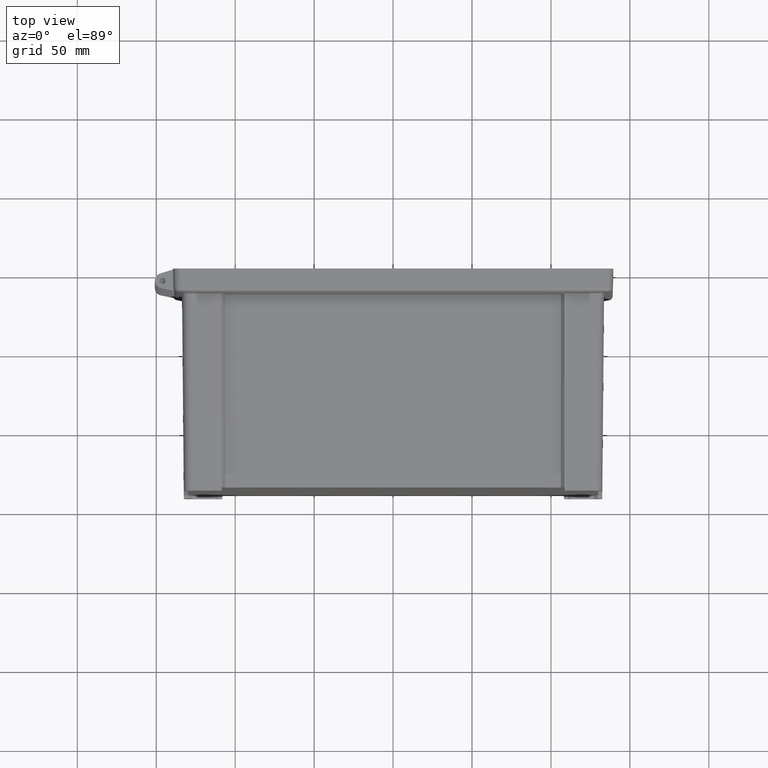
[diagram: clean part render]
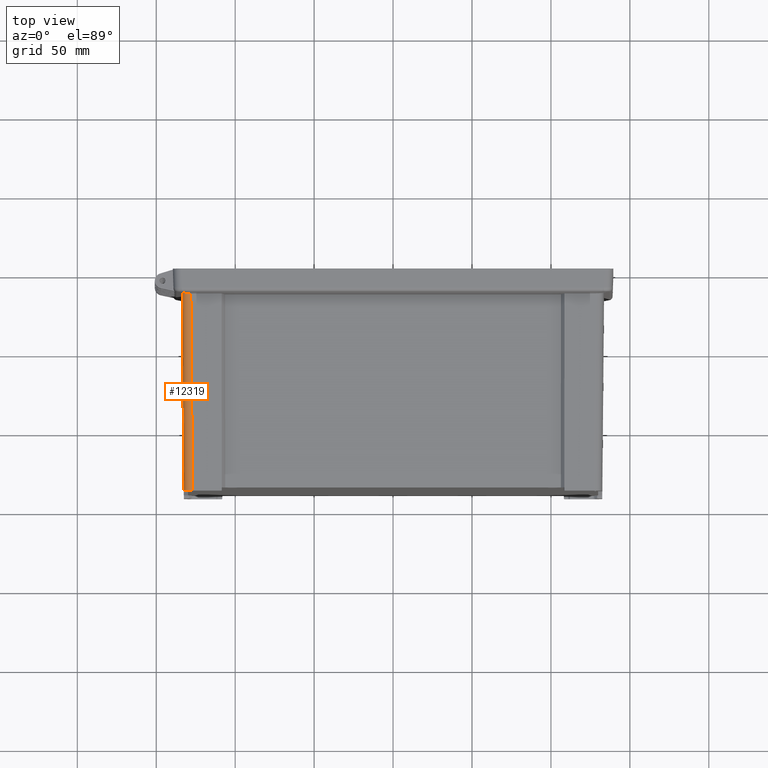
[diagram: same view with one face highlighted and labeled with its STEP entity id]
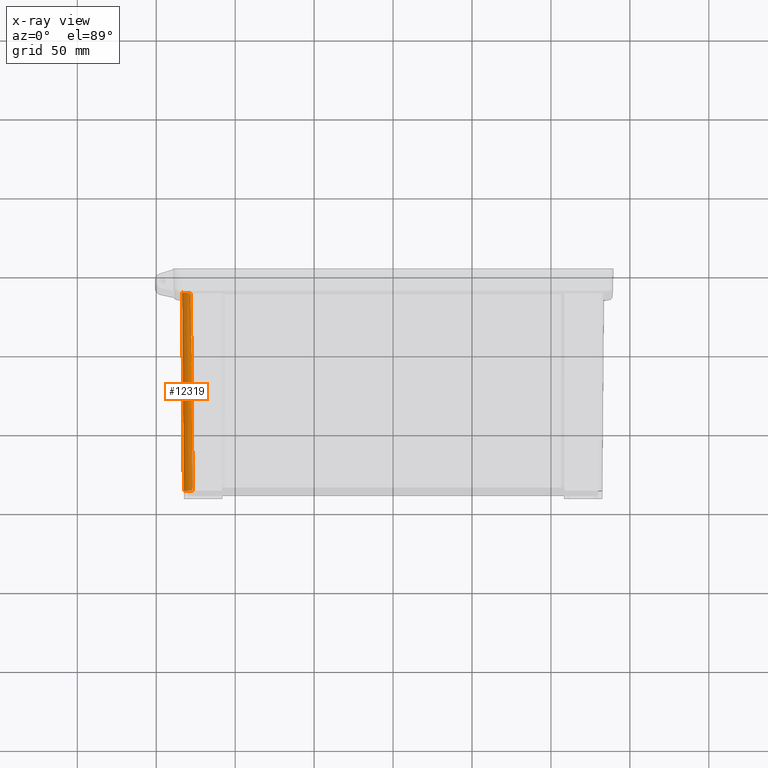
[diagram: x-ray of the same camera — body ghosted, the highlighted face saturated]
A machine part, top view. The second image highlights one B-rep face of the part: STEP entity #12319.
The next image is the same camera in x-ray: the body ghosted, the highlighted face saturated — about 0% of this face is hidden behind the body in this view.
In plain terms, the highlighted cylindrical surface (edge-blend (fillet) strip) has radius 5.5 mm, axis along (-0.0087, 0.9999, 0.0087).
Its self-contained STEP definition (entity closure, byte-faithful):
#711 =( BOUNDED_CURVE ( )  B_SPLINE_CURVE ( 3, ( #762, #761, #760, #759 ),
 .UNSPECIFIED., .F., .T. ) 
 B_SPLINE_CURVE_WITH_KNOTS ( ( 4, 4 ),
 ( 5.497825219993075100, 7.068545394366091200 ),
 .UNSPECIFIED. ) 
 CURVE ( )  GEOMETRIC_REPRESENTATION_ITEM ( )  RATIONAL_B_SPLINE_CURVE ( ( 1.000000000000000000, 0.8047558030806119000, 0.8047558030806119000, 1.000000000000000000 ) ) 
 REPRESENTATION_ITEM ( '' )  );
#713 = CARTESIAN_POINT ( 'NONE',  ( -132.5071604515845800, -140.5000000000000000, 151.5073698747315800 ) ) ;
#714 = CARTESIAN_POINT ( 'NONE',  ( -127.0073698747316200, -140.5000000000000000, 157.0071604515844400 ) ) ;
#759 = CARTESIAN_POINT ( 'NONE',  ( -132.5071604515845800, -140.5000000000000000, 151.5073698747315800 ) ) ;
#760 = CARTESIAN_POINT ( 'NONE',  ( -132.5071604515845800, -140.5000000000000000, 154.7291234140137400 ) ) ;
#761 = CARTESIAN_POINT ( 'NONE',  ( -130.2291234140138000, -140.5000000000000000, 157.0071604515844700 ) ) ;
#762 = CARTESIAN_POINT ( 'NONE',  ( -127.0073698747316200, -140.5000000000000000, 157.0071604515844400 ) ) ;
#3083 = CARTESIAN_POINT ( 'NONE',  ( -133.2479070755100600, -15.21724247044645800, 154.5382472688394800 ) ) ;
#3084 = CARTESIAN_POINT ( 'NONE',  ( -133.4821148381278700, -15.16746007370799300, 153.9176259772866900 ) ) ;
#3085 = CARTESIAN_POINT ( 'NONE',  ( -133.6011417467239300, -15.14216012327060300, 153.2649642378832800 ) ) ;
#3086 = CARTESIAN_POINT ( 'NONE',  ( -133.6011417467239300, -15.14216012327060100, 152.6013511698707800 ) ) ;
#3087 = CARTESIAN_POINT ( 'NONE',  ( -133.2479070755100600, -15.21724247044645800, 154.5382472688394800 ) ) ;
#3088 =( BOUNDED_CURVE ( )  B_SPLINE_CURVE ( 3, ( #3086, #3085, #3084, #3083 ),
 .UNSPECIFIED., .F., .T. ) 
 B_SPLINE_CURVE_WITH_KNOTS ( ( 4, 4 ),
 ( 6.243844256862529600, 6.603843504648568600 ),
 .UNSPECIFIED. ) 
 CURVE ( )  GEOMETRIC_REPRESENTATION_ITEM ( )  RATIONAL_B_SPLINE_CURVE ( ( 1.000000000000000000, 0.9892291734148825900, 0.9892291734148825900, 1.000000000000000000 ) ) 
 REPRESENTATION_ITEM ( '' )  );
#3090 = CARTESIAN_POINT ( 'NONE',  ( -133.6011417467239300, -15.14216012327060100, 152.6013511698707800 ) ) ;
#3365 = DIRECTION ( 'NONE',  ( 0.008726203243944245100, -0.9999238504775704900, -0.008726203243944238200 ) ) ;
#3366 = VECTOR ( 'NONE', #3365, 1000.000000000000100 ) ;
#3367 = CARTESIAN_POINT ( 'NONE',  ( -128.0909437334314900, -16.33473421617316400, 158.0907343102843500 ) ) ;
#3373 = LINE ( 'NONE', #3367, #3366 ) ;
#3374 = CARTESIAN_POINT ( 'NONE',  ( -128.0975329269510000, -15.57968742533357800, 158.0973235038038400 ) ) ;
#3394 = DIRECTION ( 'NONE',  ( -0.008726203243944246800, 0.9999238504775704900, 0.008726203243944238200 ) ) ;
#3395 = VECTOR ( 'NONE', #3394, 1000.000000000000100 ) ;
#3396 = CARTESIAN_POINT ( 'NONE',  ( -133.5868279885217500, -16.78235435393195000, 152.5870374116688000 ) ) ;
#3397 = LINE ( 'NONE', #3396, #3395 ) ;
#3576 = CYLINDRICAL_SURFACE ( 'NONE', #3635, 5.499999999999988500 ) ;
#3577 = FACE_OUTER_BOUND ( 'NONE', #12320, .T. ) ;
#3612 = CARTESIAN_POINT ( 'NONE',  ( -133.2479070755100600, -15.21724247044645800, 154.5382472688394800 ) ) ;
#3613 = CARTESIAN_POINT ( 'NONE',  ( -133.1492238040318600, -15.23821824732623400, 154.7997456014094600 ) ) ;
#3614 = CARTESIAN_POINT ( 'NONE',  ( -133.0314545325559500, -15.25941638782640600, 155.0517711536117200 ) ) ;
#3615 = CARTESIAN_POINT ( 'NONE',  ( -132.7581268811346400, -15.30102225274967500, 155.5371700272466500 ) ) ;
#3616 = CARTESIAN_POINT ( 'NONE',  ( -132.6024432093437600, -15.32138996488629900, 155.7700319386007100 ) ) ;
#3617 = CARTESIAN_POINT ( 'NONE',  ( -132.2617867430420800, -15.35956798487716800, 156.2049194952492400 ) ) ;
#3618 = CARTESIAN_POINT ( 'NONE',  ( -132.0759358451910300, -15.37752586928050000, 156.4086403797058200 ) ) ;
#3619 = CARTESIAN_POINT ( 'NONE',  ( -131.6729720297167900, -15.41103800971607300, 156.7884558297585300 ) ) ;
#3620 = CARTESIAN_POINT ( 'NONE',  ( -131.4540239782456900, -15.42668175834707100, 156.9655455875998200 ) ) ;
#3621 = CARTESIAN_POINT ( 'NONE',  ( -130.9976194354427200, -15.45499820470180000, 157.2805762455775800 ) ) ;
#3622 = CARTESIAN_POINT ( 'NONE',  ( -130.7592178523183900, -15.46778486444327200, 157.4198180578713400 ) ) ;
#3623 = CARTESIAN_POINT ( 'NONE',  ( -130.2622399457534900, -15.49161036990402700, 157.6620634252288900 ) ) ;
#3624 = CARTESIAN_POINT ( 'NONE',  ( -130.0015407683615900, -15.50272743885199000, 157.7656764623934300 ) ) ;
#3625 = CARTESIAN_POINT ( 'NONE',  ( -129.2035910054857200, -15.53489436256572300, 158.0141547914676300 ) ) ;
#3626 = CARTESIAN_POINT ( 'NONE',  ( -128.6575568659820900, -15.55444775862735100, 158.0975437670382700 ) ) ;
#3627 = CARTESIAN_POINT ( 'NONE',  ( -128.0975329269510000, -15.57968742533357800, 158.0973235038038400 ) ) ;
#3631 = B_SPLINE_CURVE_WITH_KNOTS ( 'NONE', 3,
 ( #3627, #3626, #3625, #3624, #3623, #3622, #3621, #3620, #3619, #3618, #3617, #3616, #3615, #3614, #3613, #3612 ),
 .UNSPECIFIED., .F., .F.,
 ( 4, 2, 2, 2, 2, 2, 2, 4 ),
 ( 0.0000000000000000000, 0.001657878926426451200, 0.002486818389639637000, 0.003315757852852823000, 0.004144697316066008600, 0.004973636779279194200, 0.005802576242492379700, 0.006631515705705566200 ),
 .UNSPECIFIED. ) ;
#3632 = DIRECTION ( 'NONE',  ( -0.9999619230641713100, -0.008726535498374132400, 0.0000000000000000000 ) ) ;
#3633 = DIRECTION ( 'NONE',  ( -0.008726203243944246800, 0.9999238504775704900, 0.008726203243944236400 ) ) ;
#3634 = CARTESIAN_POINT ( 'NONE',  ( -128.0870374116688300, -16.73435840869089100, 152.5870374116687500 ) ) ;
#3635 = AXIS2_PLACEMENT_3D ( 'NONE', #3634, #3633, #3632 ) ;
#10775 = VERTEX_POINT ( 'NONE', #714 ) ;
#10777 = EDGE_CURVE ( 'NONE', #10775, #10778, #711, .T. ) ;
#10778 = VERTEX_POINT ( 'NONE', #713 ) ;
#12022 = VERTEX_POINT ( 'NONE', #3090 ) ;
#12024 = EDGE_CURVE ( 'NONE', #12022, #12025, #3088, .T. ) ;
#12025 = VERTEX_POINT ( 'NONE', #3087 ) ;
#12186 = VERTEX_POINT ( 'NONE', #3374 ) ;
#12188 = EDGE_CURVE ( 'NONE', #12186, #10775, #3373, .T. ) ;
#12201 = EDGE_CURVE ( 'NONE', #10778, #12022, #3397, .T. ) ;
#12302 = ORIENTED_EDGE ( 'NONE', *, *, #12024, .F. ) ;
#12303 = ORIENTED_EDGE ( 'NONE', *, *, #12201, .F. ) ;
#12319 = ADVANCED_FACE ( 'NONE', ( #3577 ), #3576, .T. ) ;
#12320 = EDGE_LOOP ( 'NONE', ( #12321, #12322, #12323, #12302, #12303 ) ) ;
#12321 = ORIENTED_EDGE ( 'NONE', *, *, #10777, .F. ) ;
#12322 = ORIENTED_EDGE ( 'NONE', *, *, #12188, .F. ) ;
#12323 = ORIENTED_EDGE ( 'NONE', *, *, #12324, .T. ) ;
#12324 = EDGE_CURVE ( 'NONE', #12186, #12025, #3631, .T. ) ;